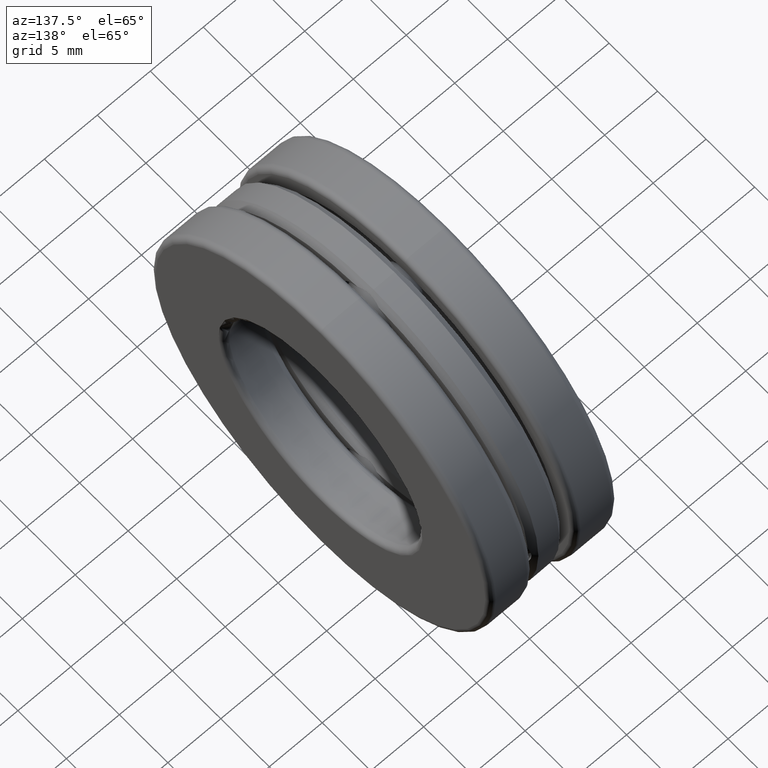
[diagram: clean part render]
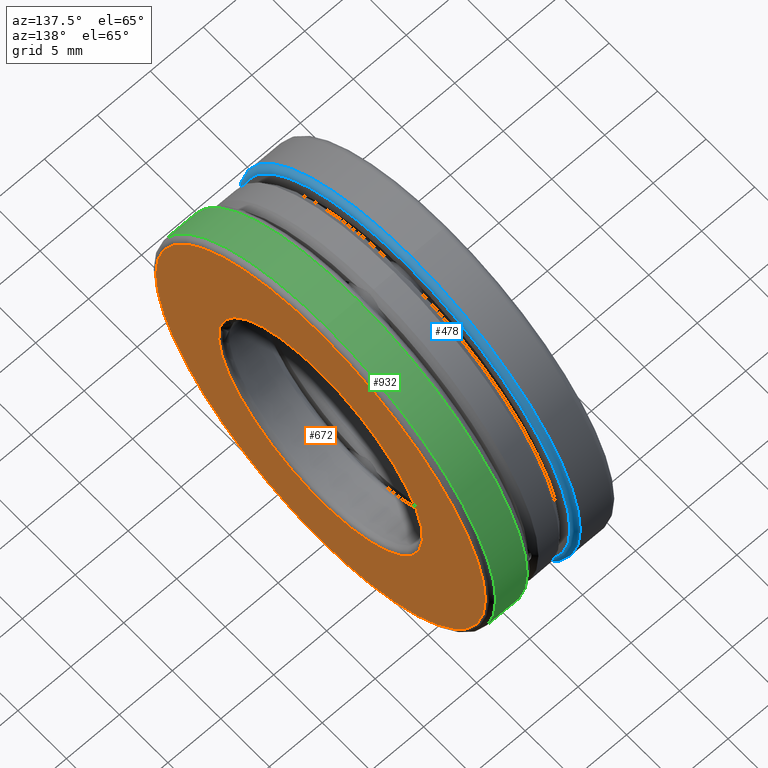
[diagram: same view with three faces highlighted in distinct colors, each labeled with its STEP entity id]
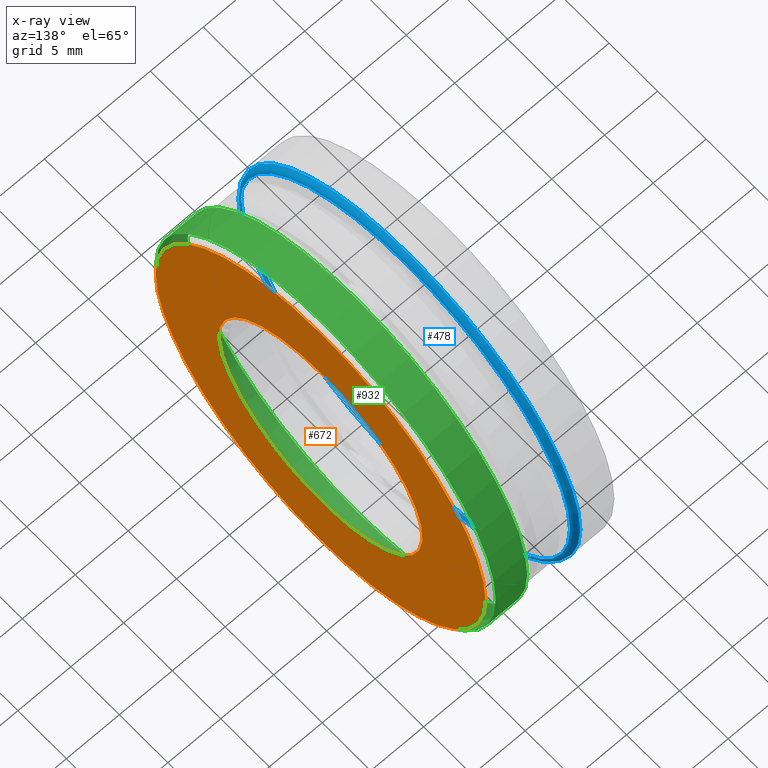
[diagram: x-ray of the same camera — body ghosted, the three highlighted faces saturated]
A machine part, auxiliary view with three faces highlighted in distinct colors.
The next image is the same camera in x-ray (body ghosted, the three faces saturated) — at least one of them is partly hidden behind the body in this view.
Their STEP definitions:

[orange] entity #672 — the highlighted planar face has unit normal (1, 0, 0).
#45 = DIRECTION ( 'NONE',  ( 0.0000000000000000000, 0.0000000000000000000, -1.000000000000000000 ) ) ;
#48 = CIRCLE ( 'NONE', #590, 0.4135000000000000900 ) ;
#54 = CARTESIAN_POINT ( 'NONE',  ( 0.2360000000000001000, 0.0000000000000000000, 0.0000000000000000000 ) ) ;
#152 = PLANE ( 'NONE',  #927 ) ;
#163 = CARTESIAN_POINT ( 'NONE',  ( 0.2359999999999999600, 0.0000000000000000000, 0.6690000000000001500 ) ) ;
#259 = FACE_BOUND ( 'NONE', #577, .T. ) ;
#270 = VERTEX_POINT ( 'NONE', #288 ) ;
#280 = EDGE_CURVE ( 'NONE', #270, #270, #48, .T. ) ;
#288 = CARTESIAN_POINT ( 'NONE',  ( 0.2360000000000001000, 0.0000000000000000000, 0.4135000000000000900 ) ) ;
#379 = DIRECTION ( 'NONE',  ( -1.000000000000000000, -0.0000000000000000000, -0.0000000000000000000 ) ) ;
#424 = ORIENTED_EDGE ( 'NONE', *, *, #280, .T. ) ;
#467 = DIRECTION ( 'NONE',  ( 0.0000000000000000000, 0.0000000000000000000, 1.000000000000000000 ) ) ;
#474 = CARTESIAN_POINT ( 'NONE',  ( 0.2360000000000000200, 1.261675394334181700E-016, 0.0000000000000000000 ) ) ;
#546 = ORIENTED_EDGE ( 'NONE', *, *, #619, .F. ) ;
#560 = DIRECTION ( 'NONE',  ( -1.000000000000000000, -0.0000000000000000000, -0.0000000000000000000 ) ) ;
#575 = EDGE_LOOP ( 'NONE', ( #546 ) ) ;
#577 = EDGE_LOOP ( 'NONE', ( #424 ) ) ;
#590 = AXIS2_PLACEMENT_3D ( 'NONE', #54, #560, #467 ) ;
#612 = AXIS2_PLACEMENT_3D ( 'NONE', #750, #379, #650 ) ;
#619 = EDGE_CURVE ( 'NONE', #825, #825, #1064, .T. ) ;
#650 = DIRECTION ( 'NONE',  ( 0.0000000000000000000, 0.0000000000000000000, 1.000000000000000000 ) ) ;
#662 = DIRECTION ( 'NONE',  ( 1.000000000000000000, 0.0000000000000000000, 0.0000000000000000000 ) ) ;
#672 = ADVANCED_FACE ( 'NONE', ( #259, #1117 ), #152, .T. ) ;
#750 = CARTESIAN_POINT ( 'NONE',  ( 0.2359999999999999600, 0.0000000000000000000, 0.0000000000000000000 ) ) ;
#825 = VERTEX_POINT ( 'NONE', #163 ) ;
#927 = AXIS2_PLACEMENT_3D ( 'NONE', #474, #662, #45 ) ;
#1064 = CIRCLE ( 'NONE', #612, 0.6690000000000001500 ) ;
#1117 = FACE_OUTER_BOUND ( 'NONE', #575, .T. ) ;

[blue] entity #478 — the highlighted toroidal blend (fillet) surface has major radius 16.9926 mm and minor (blend) radius 0.508 mm.
#3 = AXIS2_PLACEMENT_3D ( 'NONE', #856, #483, #1058 ) ;
#24 = DIRECTION ( 'NONE',  ( 0.0000000000000000000, 0.0000000000000000000, 1.000000000000000000 ) ) ;
#37 = AXIS2_PLACEMENT_3D ( 'NONE', #616, #1085, #191 ) ;
#112 = TOROIDAL_SURFACE ( 'NONE', #37, 0.6690000000000000400, 0.01999999999999996600 ) ;
#187 = EDGE_LOOP ( 'NONE', ( #817 ) ) ;
#191 = DIRECTION ( 'NONE',  ( 0.0000000000000000000, 0.0000000000000000000, 1.000000000000000000 ) ) ;
#203 = ORIENTED_EDGE ( 'NONE', *, *, #913, .F. ) ;
#272 = CARTESIAN_POINT ( 'NONE',  ( -0.09866824000000004600, 0.0000000000000000000, 0.6889999999999999500 ) ) ;
#386 = CARTESIAN_POINT ( 'NONE',  ( -0.07866824000000002800, 0.0000000000000000000, 0.6690000000000000400 ) ) ;
#414 = FACE_OUTER_BOUND ( 'NONE', #187, .T. ) ;
#460 = VERTEX_POINT ( 'NONE', #272 ) ;
#478 = ADVANCED_FACE ( 'NONE', ( #532, #414 ), #112, .T. ) ;
#483 = DIRECTION ( 'NONE',  ( -1.000000000000000000, -0.0000000000000000000, -0.0000000000000000000 ) ) ;
#516 = EDGE_CURVE ( 'NONE', #888, #888, #820, .T. ) ;
#532 = FACE_OUTER_BOUND ( 'NONE', #1023, .T. ) ;
#610 = DIRECTION ( 'NONE',  ( -1.000000000000000000, -0.0000000000000000000, -0.0000000000000000000 ) ) ;
#616 = CARTESIAN_POINT ( 'NONE',  ( -0.09866824000000004600, 0.0000000000000000000, 0.0000000000000000000 ) ) ;
#793 = AXIS2_PLACEMENT_3D ( 'NONE', #1185, #610, #24 ) ;
#817 = ORIENTED_EDGE ( 'NONE', *, *, #516, .T. ) ;
#820 = CIRCLE ( 'NONE', #793, 0.6690000000000000400 ) ;
#856 = CARTESIAN_POINT ( 'NONE',  ( -0.09866824000000004600, 0.0000000000000000000, 0.0000000000000000000 ) ) ;
#888 = VERTEX_POINT ( 'NONE', #386 ) ;
#913 = EDGE_CURVE ( 'NONE', #460, #460, #991, .T. ) ;
#991 = CIRCLE ( 'NONE', #3, 0.6889999999999999500 ) ;
#1023 = EDGE_LOOP ( 'NONE', ( #203 ) ) ;
#1058 = DIRECTION ( 'NONE',  ( 0.0000000000000000000, 0.0000000000000000000, 1.000000000000000000 ) ) ;
#1085 = DIRECTION ( 'NONE',  ( -1.000000000000000000, -0.0000000000000000000, -0.0000000000000000000 ) ) ;
#1185 = CARTESIAN_POINT ( 'NONE',  ( -0.07866824000000002800, 0.0000000000000000000, 0.0000000000000000000 ) ) ;

[green] entity #932 — the highlighted cylindrical surface (bore or boss wall) has radius 17.5006 mm, axis along (-1, -0, -0).
#95 = FACE_OUTER_BOUND ( 'NONE', #780, .T. ) ;
#209 = AXIS2_PLACEMENT_3D ( 'NONE', #1074, #768, #292 ) ;
#226 = EDGE_CURVE ( 'NONE', #733, #733, #794, .T. ) ;
#262 = DIRECTION ( 'NONE',  ( -1.000000000000000000, -0.0000000000000000000, -0.0000000000000000000 ) ) ;
#267 = EDGE_LOOP ( 'NONE', ( #1246 ) ) ;
#292 = DIRECTION ( 'NONE',  ( 0.0000000000000000000, 0.0000000000000000000, 1.000000000000000000 ) ) ;
#383 = EDGE_CURVE ( 'NONE', #432, #432, #1177, .T. ) ;
#432 = VERTEX_POINT ( 'NONE', #779 ) ;
#638 = ORIENTED_EDGE ( 'NONE', *, *, #226, .T. ) ;
#651 = DIRECTION ( 'NONE',  ( -1.000000000000000000, -0.0000000000000000000, -0.0000000000000000000 ) ) ;
#733 = VERTEX_POINT ( 'NONE', #984 ) ;
#740 = DIRECTION ( 'NONE',  ( 0.0000000000000000000, 0.0000000000000000000, 1.000000000000000000 ) ) ;
#754 = CARTESIAN_POINT ( 'NONE',  ( 0.0000000000000000000, 0.0000000000000000000, 0.0000000000000000000 ) ) ;
#768 = DIRECTION ( 'NONE',  ( -1.000000000000000000, -0.0000000000000000000, -0.0000000000000000000 ) ) ;
#771 = FACE_OUTER_BOUND ( 'NONE', #267, .T. ) ;
#779 = CARTESIAN_POINT ( 'NONE',  ( 0.09866824000000029600, 0.0000000000000000000, 0.6890000000000000600 ) ) ;
#780 = EDGE_LOOP ( 'NONE', ( #638 ) ) ;
#794 = CIRCLE ( 'NONE', #1119, 0.6890000000000000600 ) ;
#932 = ADVANCED_FACE ( 'NONE', ( #771, #95 ), #1000, .T. ) ;
#984 = CARTESIAN_POINT ( 'NONE',  ( 0.2160000000000003300, 0.0000000000000000000, 0.6890000000000000600 ) ) ;
#1000 = CYLINDRICAL_SURFACE ( 'NONE', #1130, 0.6890000000000000600 ) ;
#1074 = CARTESIAN_POINT ( 'NONE',  ( 0.09866824000000029600, 0.0000000000000000000, 0.0000000000000000000 ) ) ;
#1119 = AXIS2_PLACEMENT_3D ( 'NONE', #1222, #651, #740 ) ;
#1130 = AXIS2_PLACEMENT_3D ( 'NONE', #754, #262, #1154 ) ;
#1154 = DIRECTION ( 'NONE',  ( 0.0000000000000000000, 0.0000000000000000000, 1.000000000000000000 ) ) ;
#1177 = CIRCLE ( 'NONE', #209, 0.6890000000000000600 ) ;
#1222 = CARTESIAN_POINT ( 'NONE',  ( 0.2160000000000003300, 0.0000000000000000000, 0.0000000000000000000 ) ) ;
#1246 = ORIENTED_EDGE ( 'NONE', *, *, #383, .F. ) ;